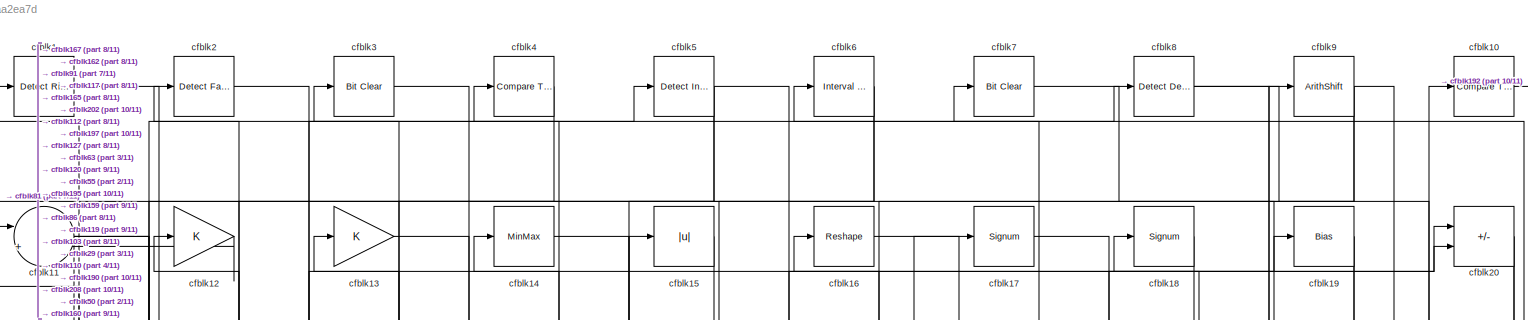
[diagram: root canvas - part 1/11, full width, top band]
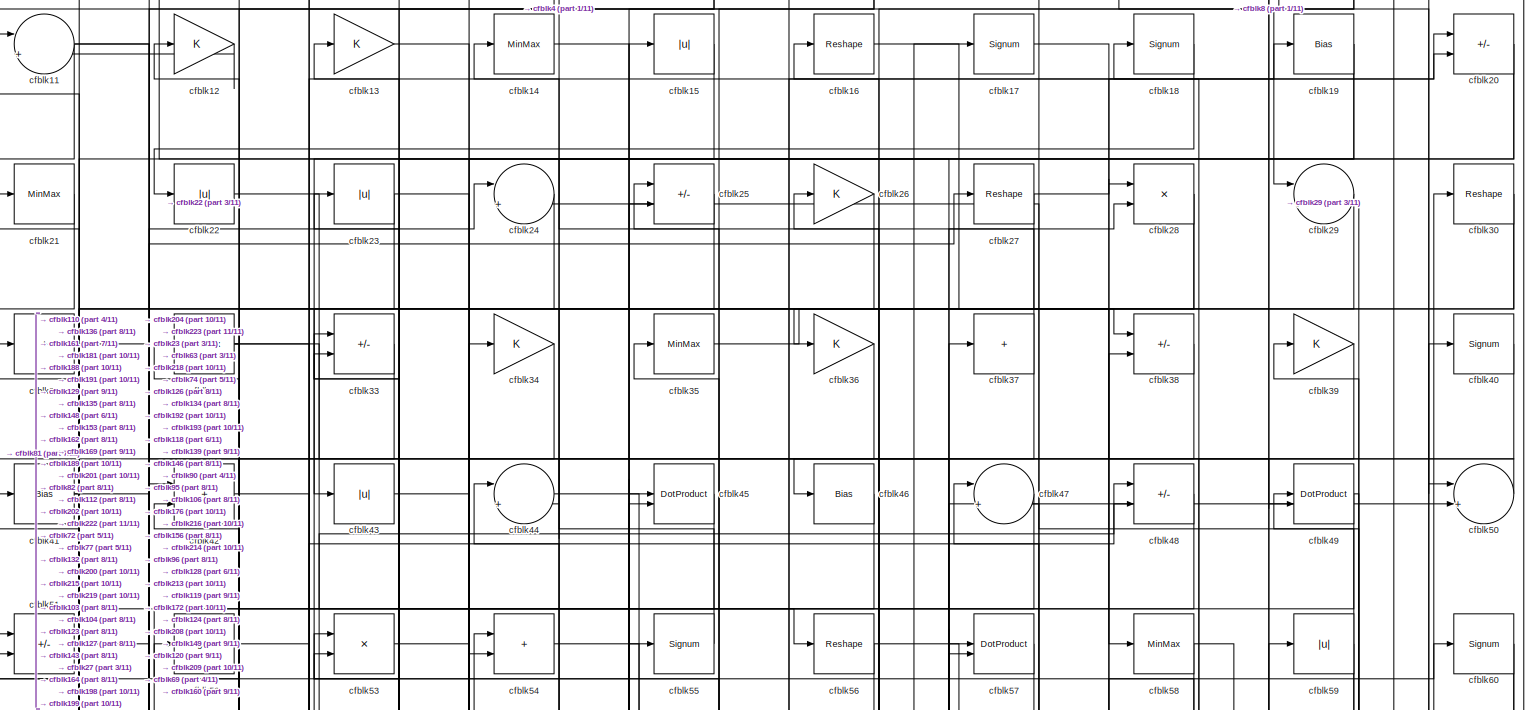
[diagram: root canvas - part 2/11, full width, top band]
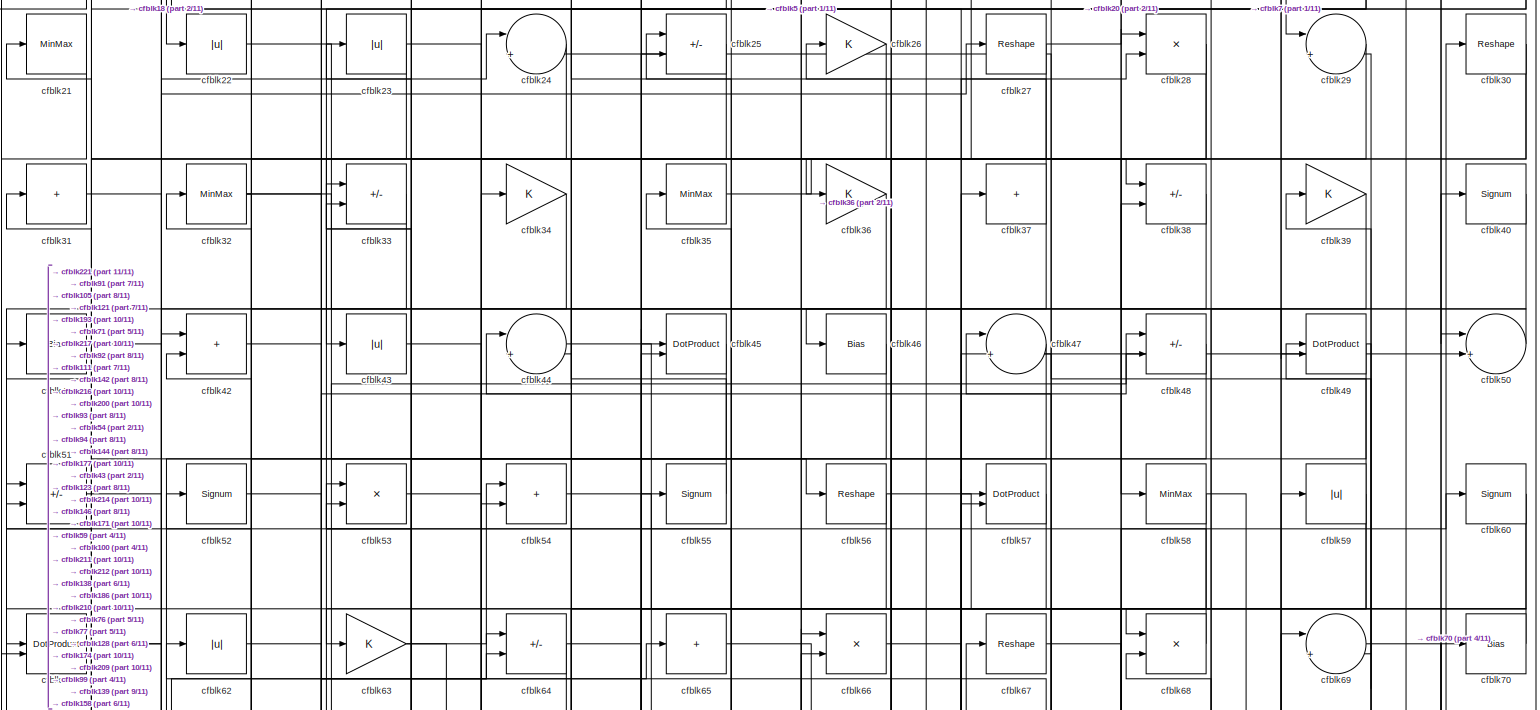
[diagram: root canvas - part 3/11, full width, top band]
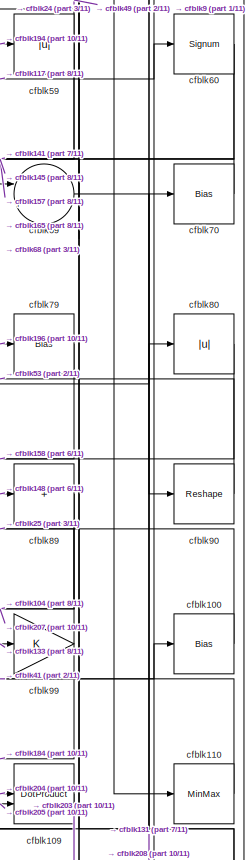
[diagram: root canvas - part 4/11, middle right region]
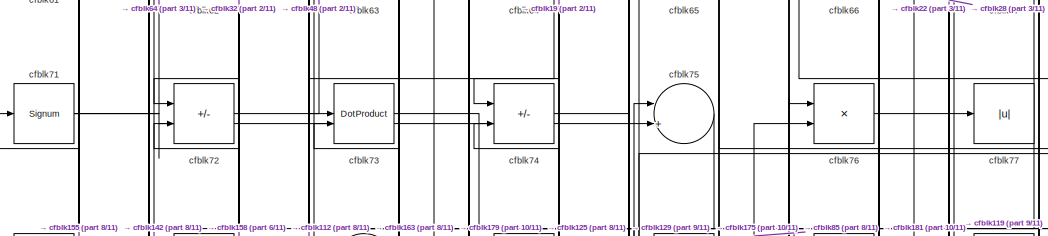
[diagram: root canvas - part 5/11, top center region]
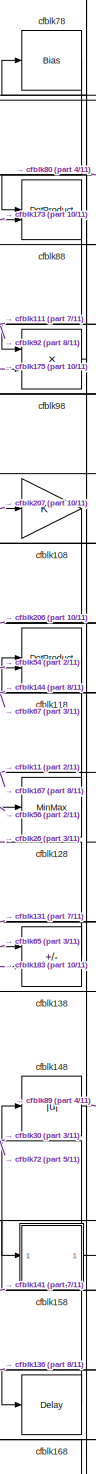
[diagram: root canvas - part 6/11, middle right region]
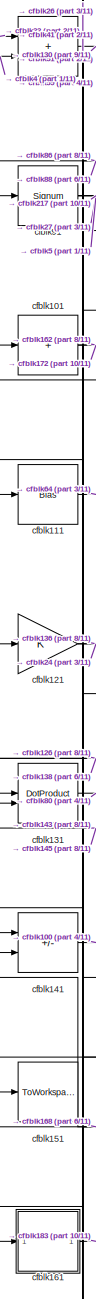
[diagram: root canvas - part 7/11, middle left region]
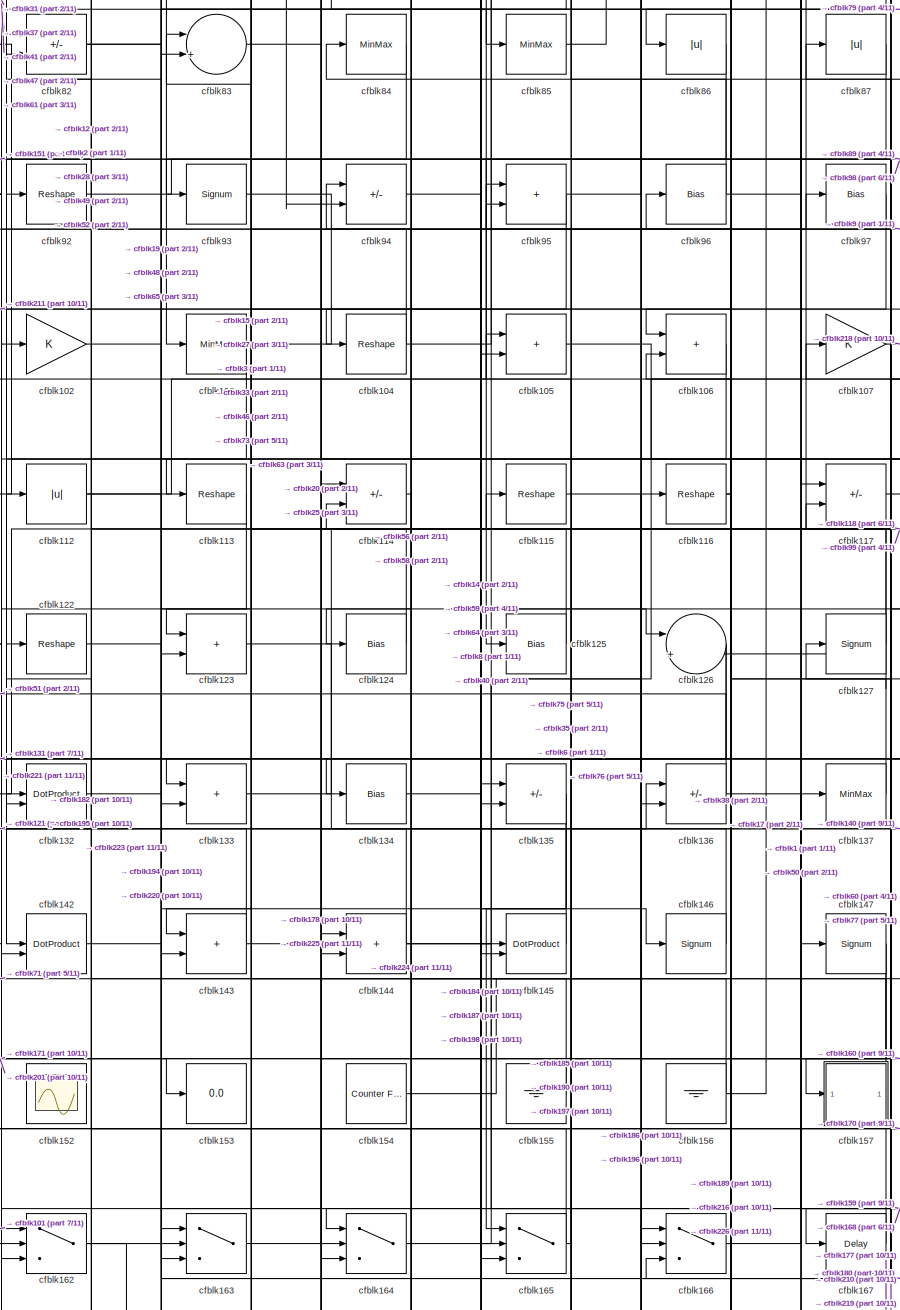
[diagram: root canvas - part 8/11, central region]
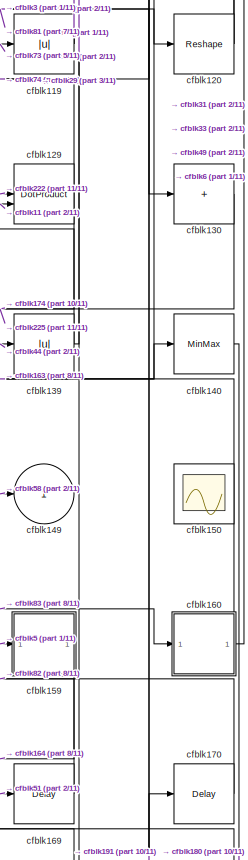
[diagram: root canvas - part 9/11, middle right region]
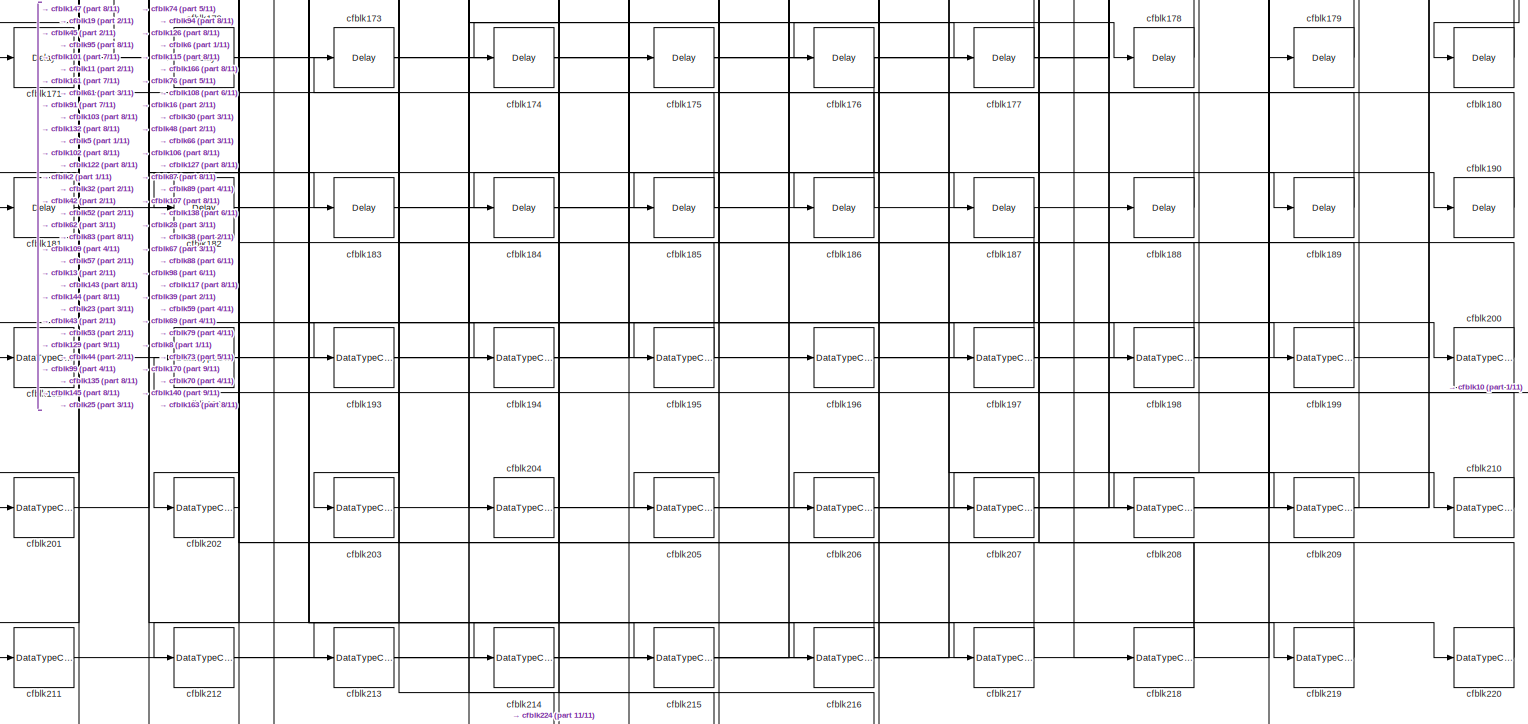
[diagram: root canvas - part 10/11, full width, bottom band]
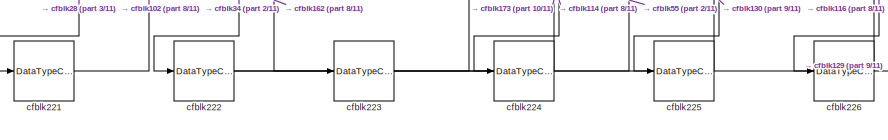
[diagram: root canvas - part 11/11, bottom left region]
MODEL slx_a9c3eaa2ea7d
KIND model
CONFIG AbsTol = auto
CONFIG EnableMultiTasking = off
CONFIG FixedStep = auto
CONFIG MaxStep = auto
CONFIG MinStep = auto
CONFIG RelTol = 1e-3
CONFIG SampleTimeConstraint = Unconstrained
CONFIG SolverName = VariableStepAuto
CONFIG StartTime = 0.0
CONFIG StopTime = 10.0
BLOCK [Reference] cfblk1  REF=hdlsllib/Logic and Bit
Operations/Detect Rise
Positive
  SourceBlock = hdlsllib/Logic and Bit\nOperations/Detect Rise\nPositive
  SourceType = Detect Rise Positive
BLOCK [Reference] cfblk10  REF=hdlsllib/Logic and Bit
Operations/Compare
To Constant
  SourceBlock = hdlsllib/Logic and Bit\nOperations/Compare\nTo Constant
  SourceType = Compare To Constant
BLOCK [Bias] cfblk100
  Bias = 0.0
  SaturateOnIntegerOverflow = off
BLOCK [Sum] cfblk101
  IconShape = rectangular
  Inputs = +
BLOCK [Gain] cfblk102
BLOCK [MinMax] cfblk103
BLOCK [Reshape] cfblk104
BLOCK [Sum] cfblk105
  IconShape = rectangular
BLOCK [Sum] cfblk106
  IconShape = rectangular
BLOCK [Gain] cfblk107
BLOCK [Gain] cfblk108
BLOCK [DotProduct] cfblk109
  OutDataTypeStr = Inherit: Inherit via internal rule
BLOCK [Sum] cfblk11
  Inputs = |++
BLOCK [MinMax] cfblk110
BLOCK [Bias] cfblk111
  Bias = 0.0
  SaturateOnIntegerOverflow = off
BLOCK [Abs] cfblk112
  SaturateOnIntegerOverflow = off
BLOCK [Reshape] cfblk113
BLOCK [Sum] cfblk114
  IconShape = rectangular
  Inputs = +-
BLOCK [Reshape] cfblk115
BLOCK [Reshape] cfblk116
BLOCK [Sum] cfblk117
  IconShape = rectangular
  Inputs = +-
BLOCK [DotProduct] cfblk118
  OutDataTypeStr = Inherit: Inherit via internal rule
BLOCK [Abs] cfblk119
  SaturateOnIntegerOverflow = off
BLOCK [Gain] cfblk12
BLOCK [Reshape] cfblk120
BLOCK [Gain] cfblk121
BLOCK [Reshape] cfblk122
BLOCK [Sum] cfblk123
  IconShape = rectangular
BLOCK [Bias] cfblk124
  Bias = 0.0
  SaturateOnIntegerOverflow = off
BLOCK [Bias] cfblk125
  Bias = 0.0
  SaturateOnIntegerOverflow = off
BLOCK [Sum] cfblk126
  Inputs = |++
BLOCK [Signum] cfblk127
BLOCK [MinMax] cfblk128
BLOCK [DotProduct] cfblk129
  OutDataTypeStr = Inherit: Inherit via internal rule
BLOCK [Gain] cfblk13
BLOCK [Sum] cfblk130
  IconShape = rectangular
  Inputs = +
BLOCK [DotProduct] cfblk131
  OutDataTypeStr = Inherit: Inherit via internal rule
BLOCK [DotProduct] cfblk132
  OutDataTypeStr = Inherit: Inherit via internal rule
BLOCK [Sum] cfblk133
  IconShape = rectangular
BLOCK [Bias] cfblk134
  Bias = 0.0
  SaturateOnIntegerOverflow = off
BLOCK [Sum] cfblk135
  IconShape = rectangular
  Inputs = +-
BLOCK [Sum] cfblk136
  IconShape = rectangular
  Inputs = +-
BLOCK [MinMax] cfblk137
BLOCK [Sum] cfblk138
  IconShape = rectangular
  Inputs = +-
BLOCK [Abs] cfblk139
  SaturateOnIntegerOverflow = off
BLOCK [MinMax] cfblk14
BLOCK [MinMax] cfblk140
BLOCK [Sum] cfblk141
  IconShape = rectangular
  Inputs = +-
BLOCK [DotProduct] cfblk142
  OutDataTypeStr = Inherit: Inherit via internal rule
BLOCK [Sum] cfblk143
  IconShape = rectangular
BLOCK [Sum] cfblk144
  IconShape = rectangular
BLOCK [DotProduct] cfblk145
  OutDataTypeStr = Inherit: Inherit via internal rule
BLOCK [Signum] cfblk146
BLOCK [Signum] cfblk147
BLOCK [Abs] cfblk148
  SaturateOnIntegerOverflow = off
BLOCK [Outport] cfblk149
  VectorParamsAs1DForOutWhenUnconnected = off
BLOCK [Abs] cfblk15
  SaturateOnIntegerOverflow = off
BLOCK [Scope] cfblk150
  Floating = on
  NumInputPorts = 1
  ScopeSpecificationString = Simulink.scopes.TimeScopeBlockCfg('CurrentConfiguration', extmgr.ConfigurationSet(extmgr.Configuration('Core','General UI',true,'FigureColor',[0.156862745098039 0.156862745098039 0.156862745098039]),extmgr.Configuration('Core','Source UI',true),extmgr.Configuration('Sources','WiredSimulink',true,'DataLoggingVariableName','ScopeData1','DataLoggingSaveFormat','StructureWithTime','DataLoggingLimitDat...<+2713ch>
BLOCK [ToWorkspace] cfblk151
  MaxDataPoints = inf
  SampleTime = -1
  SaveFormat = Timeseries
  VariableName = simout
BLOCK [Scope] cfblk152
  Floating = on
  NumInputPorts = 1
  ScopeSpecificationString = Simulink.scopes.TimeScopeBlockCfg('CurrentConfiguration', extmgr.ConfigurationSet(extmgr.Configuration('Core','General UI',true,'FigureColor',[0.156862745098039 0.156862745098039 0.156862745098039]),extmgr.Configuration('Core','Source UI',true),extmgr.Configuration('Sources','WiredSimulink',true,'DataLoggingVariableName','ScopeData1','DataLoggingSaveFormat','StructureWithTime','DataLoggingLimitDat...<+2713ch>
BLOCK [Display] cfblk153
  Decimation = 1
BLOCK [Reference] cfblk154  REF=hdlsllib/Sources/Counter
Free-Running
  SourceBlock = hdlsllib/Sources/Counter\nFree-Running
  SourceType = Counter Free-Running
BLOCK [Ground] cfblk155
BLOCK [Ground] cfblk156
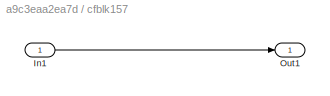
BLOCK [SubSystem] cfblk157
  LibrarySourceBlock = hdlsllib/Ports &\nSubsystems/Subsystem
BLOCK [Inport] cfblk157/In1
BLOCK [Outport] cfblk157/Out1
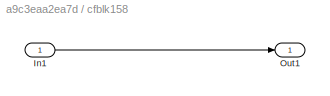
BLOCK [SubSystem] cfblk158
  LibrarySourceBlock = hdlsllib/Ports &\nSubsystems/Subsystem
BLOCK [Inport] cfblk158/In1
BLOCK [Outport] cfblk158/Out1
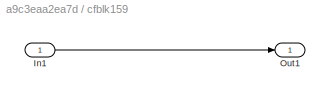
BLOCK [SubSystem] cfblk159
  LibrarySourceBlock = hdlsllib/Ports &\nSubsystems/Subsystem
BLOCK [Inport] cfblk159/In1
BLOCK [Outport] cfblk159/Out1
BLOCK [Reshape] cfblk16
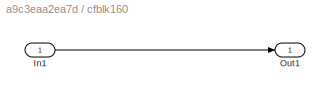
BLOCK [SubSystem] cfblk160
  LibrarySourceBlock = hdlsllib/Ports &\nSubsystems/Subsystem
BLOCK [Inport] cfblk160/In1
BLOCK [Outport] cfblk160/Out1
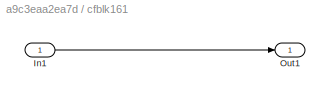
BLOCK [SubSystem] cfblk161
  LibrarySourceBlock = hdlsllib/Ports &\nSubsystems/Subsystem
BLOCK [Inport] cfblk161/In1
BLOCK [Outport] cfblk161/Out1
BLOCK [Switch] cfblk162
  InputSameDT = off
  SaturateOnIntegerOverflow = off
BLOCK [Switch] cfblk163
  InputSameDT = off
  SaturateOnIntegerOverflow = off
BLOCK [Switch] cfblk164
  InputSameDT = off
  SaturateOnIntegerOverflow = off
BLOCK [Switch] cfblk165
  InputSameDT = off
  SaturateOnIntegerOverflow = off
BLOCK [Switch] cfblk166
  InputSameDT = off
  SaturateOnIntegerOverflow = off
BLOCK [Delay] cfblk167
  InputPortMap = u0
  SampleTime = 1
BLOCK [Delay] cfblk168
  InputPortMap = u0
  SampleTime = 1
BLOCK [Delay] cfblk169
  InputPortMap = u0
  SampleTime = 1
BLOCK [Signum] cfblk17
BLOCK [Delay] cfblk170
  InputPortMap = u0
  SampleTime = 1
BLOCK [Delay] cfblk171
  InputPortMap = u0
  SampleTime = 1
BLOCK [Delay] cfblk172
  InputPortMap = u0
  SampleTime = 1
BLOCK [Delay] cfblk173
  InputPortMap = u0
  SampleTime = 1
BLOCK [Delay] cfblk174
  InputPortMap = u0
  SampleTime = 1
BLOCK [Delay] cfblk175
  InputPortMap = u0
  SampleTime = 1
BLOCK [Delay] cfblk176
  InputPortMap = u0
  SampleTime = 1
BLOCK [Delay] cfblk177
  InputPortMap = u0
  SampleTime = 1
BLOCK [Delay] cfblk178
  InputPortMap = u0
  SampleTime = 1
BLOCK [Delay] cfblk179
  InputPortMap = u0
  SampleTime = 1
BLOCK [Signum] cfblk18
BLOCK [Delay] cfblk180
  InputPortMap = u0
  SampleTime = 1
BLOCK [Delay] cfblk181
  InputPortMap = u0
  SampleTime = 1
BLOCK [Delay] cfblk182
  InputPortMap = u0
  SampleTime = 1
BLOCK [Delay] cfblk183
  InputPortMap = u0
  SampleTime = 1
BLOCK [Delay] cfblk184
  InputPortMap = u0
  SampleTime = 1
BLOCK [Delay] cfblk185
  InputPortMap = u0
  SampleTime = 1
BLOCK [Delay] cfblk186
  InputPortMap = u0
  SampleTime = 1
BLOCK [Delay] cfblk187
  InputPortMap = u0
  SampleTime = 1
BLOCK [Delay] cfblk188
  InputPortMap = u0
  SampleTime = 1
BLOCK [Delay] cfblk189
  InputPortMap = u0
  SampleTime = 1
BLOCK [Bias] cfblk19
  Bias = 0.0
  SaturateOnIntegerOverflow = off
BLOCK [Delay] cfblk190
  InputPortMap = u0
  SampleTime = 1
BLOCK [DataTypeConversion] cfblk191
  OutDataTypeStr = uint8
  RndMeth = Floor
  SaturateOnIntegerOverflow = off
BLOCK [DataTypeConversion] cfblk192
  OutDataTypeStr = uint8
  RndMeth = Floor
  SaturateOnIntegerOverflow = off
BLOCK [DataTypeConversion] cfblk193
  OutDataTypeStr = uint8
  RndMeth = Floor
  SaturateOnIntegerOverflow = off
BLOCK [DataTypeConversion] cfblk194
  OutDataTypeStr = uint8
  RndMeth = Floor
  SaturateOnIntegerOverflow = off
BLOCK [DataTypeConversion] cfblk195
  OutDataTypeStr = uint8
  RndMeth = Floor
  SaturateOnIntegerOverflow = off
BLOCK [DataTypeConversion] cfblk196
  OutDataTypeStr = uint8
  RndMeth = Floor
  SaturateOnIntegerOverflow = off
BLOCK [DataTypeConversion] cfblk197
  OutDataTypeStr = uint8
  RndMeth = Floor
  SaturateOnIntegerOverflow = off
BLOCK [DataTypeConversion] cfblk198
  OutDataTypeStr = uint8
  RndMeth = Floor
  SaturateOnIntegerOverflow = off
BLOCK [DataTypeConversion] cfblk199
  OutDataTypeStr = uint8
  RndMeth = Floor
  SaturateOnIntegerOverflow = off
BLOCK [Reference] cfblk2  REF=hdlsllib/Logic and Bit
Operations/Detect Fall
Nonpositive
  SourceBlock = hdlsllib/Logic and Bit\nOperations/Detect Fall\nNonpositive
  SourceType = Detect Fall Nonpositive
BLOCK [Sum] cfblk20
  IconShape = rectangular
  Inputs = +-
BLOCK [DataTypeConversion] cfblk200
  OutDataTypeStr = uint8
  RndMeth = Floor
  SaturateOnIntegerOverflow = off
BLOCK [DataTypeConversion] cfblk201
  OutDataTypeStr = uint8
  RndMeth = Floor
  SaturateOnIntegerOverflow = off
BLOCK [DataTypeConversion] cfblk202
  OutDataTypeStr = uint8
  RndMeth = Floor
  SaturateOnIntegerOverflow = off
BLOCK [DataTypeConversion] cfblk203
  OutDataTypeStr = uint8
  RndMeth = Floor
  SaturateOnIntegerOverflow = off
BLOCK [DataTypeConversion] cfblk204
  OutDataTypeStr = uint8
  RndMeth = Floor
  SaturateOnIntegerOverflow = off
BLOCK [DataTypeConversion] cfblk205
  OutDataTypeStr = uint8
  RndMeth = Floor
  SaturateOnIntegerOverflow = off
BLOCK [DataTypeConversion] cfblk206
  OutDataTypeStr = uint8
  RndMeth = Floor
  SaturateOnIntegerOverflow = off
BLOCK [DataTypeConversion] cfblk207
  OutDataTypeStr = uint8
  RndMeth = Floor
  SaturateOnIntegerOverflow = off
BLOCK [DataTypeConversion] cfblk208
  RndMeth = Floor
  SaturateOnIntegerOverflow = off
BLOCK [DataTypeConversion] cfblk209
  OutDataTypeStr = uint8
  RndMeth = Floor
  SaturateOnIntegerOverflow = off
BLOCK [MinMax] cfblk21
BLOCK [DataTypeConversion] cfblk210
  OutDataTypeStr = uint8
  RndMeth = Floor
  SaturateOnIntegerOverflow = off
BLOCK [DataTypeConversion] cfblk211
  OutDataTypeStr = uint8
  RndMeth = Floor
  SaturateOnIntegerOverflow = off
BLOCK [DataTypeConversion] cfblk212
  OutDataTypeStr = uint8
  RndMeth = Floor
  SaturateOnIntegerOverflow = off
BLOCK [DataTypeConversion] cfblk213
  OutDataTypeStr = uint8
  RndMeth = Floor
  SaturateOnIntegerOverflow = off
BLOCK [DataTypeConversion] cfblk214
  OutDataTypeStr = uint8
  RndMeth = Floor
  SaturateOnIntegerOverflow = off
BLOCK [DataTypeConversion] cfblk215
  OutDataTypeStr = uint8
  RndMeth = Floor
  SaturateOnIntegerOverflow = off
BLOCK [DataTypeConversion] cfblk216
  RndMeth = Floor
  SaturateOnIntegerOverflow = off
BLOCK [DataTypeConversion] cfblk217
  OutDataTypeStr = uint8
  RndMeth = Floor
  SaturateOnIntegerOverflow = off
BLOCK [DataTypeConversion] cfblk218
  RndMeth = Floor
  SaturateOnIntegerOverflow = off
BLOCK [DataTypeConversion] cfblk219
  OutDataTypeStr = uint8
  RndMeth = Floor
  SaturateOnIntegerOverflow = off
BLOCK [Abs] cfblk22
  SaturateOnIntegerOverflow = off
BLOCK [DataTypeConversion] cfblk220
  OutDataTypeStr = uint8
  RndMeth = Floor
  SaturateOnIntegerOverflow = off
BLOCK [DataTypeConversion] cfblk221
  OutDataTypeStr = uint8
  RndMeth = Floor
  SaturateOnIntegerOverflow = off
BLOCK [DataTypeConversion] cfblk222
  RndMeth = Floor
  SaturateOnIntegerOverflow = off
BLOCK [DataTypeConversion] cfblk223
  OutDataTypeStr = uint8
  RndMeth = Floor
  SaturateOnIntegerOverflow = off
BLOCK [DataTypeConversion] cfblk224
  OutDataTypeStr = uint8
  RndMeth = Floor
  SaturateOnIntegerOverflow = off
BLOCK [DataTypeConversion] cfblk225
  OutDataTypeStr = uint8
  RndMeth = Floor
  SaturateOnIntegerOverflow = off
BLOCK [DataTypeConversion] cfblk226
  OutDataTypeStr = uint8
  RndMeth = Floor
  SaturateOnIntegerOverflow = off
BLOCK [Abs] cfblk23
  SaturateOnIntegerOverflow = off
BLOCK [Sum] cfblk24
  Inputs = |++
BLOCK [Sum] cfblk25
  IconShape = rectangular
  Inputs = +-
BLOCK [Gain] cfblk26
BLOCK [Reshape] cfblk27
BLOCK [Product] cfblk28
  Inputs = */
  RndMeth = Zero
  SaturateOnIntegerOverflow = on
BLOCK [Sum] cfblk29
  Inputs = |++
BLOCK [Reference] cfblk3  REF=simulink/Logic and Bit
Operations/Bit Clear
  LibrarySourceBlock = hdlsllib/Logic and Bit\nOperations/Bit Clear
  SourceBlock = simulink/Logic and Bit\nOperations/Bit Clear
  SourceType = Bit Clear
BLOCK [Reshape] cfblk30
BLOCK [Sum] cfblk31
  IconShape = rectangular
  Inputs = +
BLOCK [MinMax] cfblk32
BLOCK [Sum] cfblk33
  IconShape = rectangular
  Inputs = +-
BLOCK [Gain] cfblk34
BLOCK [MinMax] cfblk35
BLOCK [Gain] cfblk36
BLOCK [Sum] cfblk37
  IconShape = rectangular
  Inputs = +
BLOCK [Sum] cfblk38
  IconShape = rectangular
  Inputs = +-
BLOCK [Gain] cfblk39
BLOCK [Reference] cfblk4  REF=hdlsllib/Logic and Bit
Operations/Compare
To Zero
  SourceBlock = hdlsllib/Logic and Bit\nOperations/Compare\nTo Zero
  SourceType = Compare To Zero
BLOCK [Signum] cfblk40
BLOCK [Bias] cfblk41
  Bias = 0.0
  SaturateOnIntegerOverflow = off
BLOCK [Sum] cfblk42
  IconShape = rectangular
BLOCK [Abs] cfblk43
  SaturateOnIntegerOverflow = off
BLOCK [Sum] cfblk44
  Inputs = |++
BLOCK [DotProduct] cfblk45
  OutDataTypeStr = Inherit: Inherit via internal rule
BLOCK [Bias] cfblk46
  Bias = 0.0
  SaturateOnIntegerOverflow = off
BLOCK [Sum] cfblk47
  Inputs = |++
BLOCK [Sum] cfblk48
  IconShape = rectangular
  Inputs = +-
BLOCK [DotProduct] cfblk49
  OutDataTypeStr = Inherit: Inherit via internal rule
BLOCK [Reference] cfblk5  REF=simulink/Logic and Bit
Operations/Detect
Increase
  LibrarySourceBlock = hdlsllib/Logic and Bit\nOperations/Detect\nIncrease
  SourceBlock = simulink/Logic and Bit\nOperations/Detect\nIncrease
  SourceType = Detect Increase
BLOCK [Sum] cfblk50
  Inputs = |++
BLOCK [Sum] cfblk51
  IconShape = rectangular
  Inputs = +-
BLOCK [Signum] cfblk52
BLOCK [Product] cfblk53
  Inputs = */
  RndMeth = Zero
  SaturateOnIntegerOverflow = on
BLOCK [Sum] cfblk54
  IconShape = rectangular
BLOCK [Signum] cfblk55
BLOCK [Reshape] cfblk56
BLOCK [DotProduct] cfblk57
  OutDataTypeStr = Inherit: Inherit via internal rule
BLOCK [MinMax] cfblk58
BLOCK [Abs] cfblk59
  SaturateOnIntegerOverflow = off
BLOCK [Reference] cfblk6  REF=hdlsllib/Logic and Bit
Operations/Interval Test
  SourceBlock = hdlsllib/Logic and Bit\nOperations/Interval Test
  SourceType = Interval Test
BLOCK [Signum] cfblk60
BLOCK [DotProduct] cfblk61
  OutDataTypeStr = Inherit: Inherit via internal rule
BLOCK [Abs] cfblk62
  SaturateOnIntegerOverflow = off
BLOCK [Gain] cfblk63
BLOCK [Sum] cfblk64
  IconShape = rectangular
  Inputs = +-
BLOCK [Sum] cfblk65
  IconShape = rectangular
  Inputs = +
BLOCK [Product] cfblk66
  Inputs = */
  RndMeth = Zero
  SaturateOnIntegerOverflow = on
BLOCK [Reshape] cfblk67
BLOCK [Product] cfblk68
  Inputs = */
  RndMeth = Zero
  SaturateOnIntegerOverflow = on
BLOCK [Sum] cfblk69
  Inputs = |++
BLOCK [Reference] cfblk7  REF=simulink/Logic and Bit
Operations/Bit Clear
  LibrarySourceBlock = hdlsllib/Logic and Bit\nOperations/Bit Clear
  SourceBlock = simulink/Logic and Bit\nOperations/Bit Clear
  SourceType = Bit Clear
BLOCK [Bias] cfblk70
  Bias = 0.0
  SaturateOnIntegerOverflow = off
BLOCK [Signum] cfblk71
BLOCK [Sum] cfblk72
  IconShape = rectangular
  Inputs = +-
BLOCK [DotProduct] cfblk73
  OutDataTypeStr = Inherit: Inherit via internal rule
BLOCK [Sum] cfblk74
  IconShape = rectangular
  Inputs = +-
BLOCK [Sum] cfblk75
  Inputs = |++
BLOCK [Product] cfblk76
  Inputs = */
  RndMeth = Zero
  SaturateOnIntegerOverflow = on
BLOCK [Abs] cfblk77
  SaturateOnIntegerOverflow = off
BLOCK [Bias] cfblk78
  Bias = 0.0
  SaturateOnIntegerOverflow = off
BLOCK [Bias] cfblk79
  Bias = 0.0
  SaturateOnIntegerOverflow = off
BLOCK [Reference] cfblk8  REF=simulink/Logic and Bit
Operations/Detect
Decrease
  LibrarySourceBlock = hdlsllib/Logic and Bit\nOperations/Detect\nDecrease
  SourceBlock = simulink/Logic and Bit\nOperations/Detect\nDecrease
  SourceType = Detect Decrease
BLOCK [Abs] cfblk80
  SaturateOnIntegerOverflow = off
BLOCK [Sum] cfblk81
  IconShape = rectangular
BLOCK [Sum] cfblk82
  IconShape = rectangular
  Inputs = +-
BLOCK [Sum] cfblk83
  Inputs = |++
BLOCK [MinMax] cfblk84
BLOCK [MinMax] cfblk85
BLOCK [Abs] cfblk86
  SaturateOnIntegerOverflow = off
BLOCK [Abs] cfblk87
  SaturateOnIntegerOverflow = off
BLOCK [DotProduct] cfblk88
  OutDataTypeStr = Inherit: Inherit via internal rule
BLOCK [Sum] cfblk89
  IconShape = rectangular
  Inputs = +
BLOCK [ArithShift] cfblk9
  BitShiftNumber = 8
  InputPortMap = u0
BLOCK [Reshape] cfblk90
BLOCK [Signum] cfblk91
BLOCK [Reshape] cfblk92
BLOCK [Signum] cfblk93
BLOCK [Sum] cfblk94
  IconShape = rectangular
  Inputs = +-
BLOCK [Sum] cfblk95
  IconShape = rectangular
BLOCK [Bias] cfblk96
  Bias = 0.0
  SaturateOnIntegerOverflow = off
BLOCK [Bias] cfblk97
  Bias = 0.0
  SaturateOnIntegerOverflow = off
BLOCK [Product] cfblk98
  Inputs = */
  RndMeth = Zero
  SaturateOnIntegerOverflow = on
BLOCK [Gain] cfblk99
LINE cfblk100:1 -> cfblk25:1
NET cfblk101:1 -> cfblk162:1, cfblk172:1
LINE cfblk102:1 -> cfblk220:1
NET cfblk103:1 -> cfblk182:1, cfblk9:1
NET cfblk104:1 -> cfblk33:2, cfblk40:1
LINE cfblk105:1 -> cfblk147:1
LINE cfblk106:1 -> cfblk142:2
LINE cfblk107:1 -> cfblk218:1
LINE cfblk108:1 -> cfblk206:1
LINE cfblk109:1 -> cfblk203:1
LINE cfblk10:1 -> cfblk192:1
LINE cfblk110:1 -> cfblk41:1
LINE cfblk111:1 -> cfblk64:2
NET cfblk112:1 -> cfblk75:1, cfblk8:1
LINE cfblk113:1 -> cfblk143:2
LINE cfblk114:1 -> cfblk224:1
LINE cfblk115:1 -> cfblk196:1
NET cfblk116:1 -> cfblk226:1, cfblk96:1
LINE cfblk117:1 -> cfblk60:1
LINE cfblk118:1 -> cfblk167:1
NET cfblk119:1 -> cfblk47:2, cfblk7:1
NET cfblk11:1 -> cfblk129:2, cfblk148:1, cfblk189:1
NET cfblk120:1 -> cfblk31:1, cfblk49:1
NET cfblk121:1 -> cfblk136:2, cfblk24:1
LINE cfblk122:1 -> cfblk194:1
LINE cfblk123:1 -> cfblk136:1
LINE cfblk124:1 -> cfblk52:1
LINE cfblk125:1 -> cfblk73:2
NET cfblk126:1 -> cfblk131:2, cfblk185:1
NET cfblk127:1 -> cfblk126:2, cfblk12:1, cfblk3:1
LINE cfblk128:1 -> cfblk67:1
NET cfblk129:1 -> cfblk174:1, cfblk74:2
LINE cfblk12:1 -> cfblk11:2
LINE cfblk130:1 -> cfblk225:1
LINE cfblk131:1 -> cfblk80:1
LINE cfblk132:1 -> cfblk19:1
LINE cfblk133:1 -> cfblk99:1
LINE cfblk134:1 -> cfblk15:1
NET cfblk135:1 -> cfblk163:2, cfblk165:1
NET cfblk136:1 -> cfblk168:1, cfblk51:1
LINE cfblk137:1 -> cfblk95:1
NET cfblk138:1 -> cfblk131:1, cfblk26:1
NET cfblk139:1 -> cfblk18:1, cfblk29:2
LINE cfblk13:1 -> cfblk198:1
LINE cfblk140:1 -> cfblk180:1
LINE cfblk141:1 -> cfblk100:1
LINE cfblk142:1 -> cfblk65:1
NET cfblk143:1 -> cfblk121:1, cfblk178:1
NET cfblk144:1 -> cfblk118:1, cfblk132:1, cfblk166:2
LINE cfblk145:1 -> cfblk101:1
LINE cfblk146:1 -> cfblk35:1
NET cfblk147:1 -> cfblk171:1, cfblk201:1
LINE cfblk148:1 -> cfblk89:1
LINE cfblk14:1 -> cfblk126:1
LINE cfblk154:1 -> cfblk116:1
LINE cfblk155:1 -> cfblk71:1
NET cfblk156:1 -> cfblk17:1, cfblk94:1
LINE cfblk157/In1:1 -> cfblk157/Out1:1
LINE cfblk157:1 -> cfblk83:1
LINE cfblk158/In1:1 -> cfblk158/Out1:1
NET cfblk158:1 -> cfblk30:1, cfblk72:2
LINE cfblk159/In1:1 -> cfblk159/Out1:1
LINE cfblk159:1 -> cfblk164:1
LINE cfblk15:1 -> cfblk143:1
LINE cfblk160/In1:1 -> cfblk160/Out1:1
NET cfblk160:1 -> cfblk33:1, cfblk6:1
LINE cfblk161/In1:1 -> cfblk161/Out1:1
NET cfblk161:1 -> cfblk183:1, cfblk51:2
NET cfblk162:1 -> cfblk223:1, cfblk48:2
LINE cfblk163:1 -> cfblk140:1
LINE cfblk164:1 -> cfblk37:1
NET cfblk165:1 -> cfblk105:1, cfblk2:1
LINE cfblk166:1 -> cfblk137:1
LINE cfblk167:1 -> cfblk1:1
LINE cfblk168:1 -> cfblk141:2
LINE cfblk169:1 -> cfblk47:1
LINE cfblk16:1 -> cfblk58:1
LINE cfblk170:1 -> cfblk82:2
LINE cfblk171:1 -> cfblk25:2
LINE cfblk172:1 -> cfblk38:2
LINE cfblk173:1 -> cfblk88:2
LINE cfblk174:1 -> cfblk28:1
LINE cfblk175:1 -> cfblk98:2
LINE cfblk176:1 -> cfblk205:1
LINE cfblk177:1 -> cfblk106:2
LINE cfblk178:1 -> cfblk117:2
LINE cfblk179:1 -> cfblk73:1
LINE cfblk17:1 -> cfblk49:2
LINE cfblk180:1 -> cfblk163:1
LINE cfblk181:1 -> cfblk76:1
LINE cfblk182:1 -> cfblk83:2
LINE cfblk183:1 -> cfblk138:2
LINE cfblk184:1 -> cfblk135:1
LINE cfblk185:1 -> cfblk144:1
LINE cfblk186:1 -> cfblk166:1
LINE cfblk187:1 -> cfblk212:1
LINE cfblk188:1 -> cfblk11:1
LINE cfblk189:1 -> cfblk166:3
LINE cfblk18:1 -> cfblk22:1
LINE cfblk190:1 -> cfblk95:2
LINE cfblk191:1 -> cfblk170:1
LINE cfblk192:1 -> cfblk45:1
LINE cfblk193:1 -> cfblk45:2
LINE cfblk194:1 -> cfblk59:1
LINE cfblk195:1 -> cfblk122:1
LINE cfblk196:1 -> cfblk79:1
LINE cfblk197:1 -> cfblk115:1
LINE cfblk198:1 -> cfblk145:1
LINE cfblk199:1 -> cfblk13:1
NET cfblk19:1 -> cfblk181:1, cfblk74:1
LINE cfblk1:1 -> cfblk117:1
LINE cfblk200:1 -> cfblk23:1
LINE cfblk201:1 -> cfblk42:1
LINE cfblk202:1 -> cfblk42:2
LINE cfblk203:1 -> cfblk70:1
LINE cfblk204:1 -> cfblk109:1
LINE cfblk205:1 -> cfblk109:2
LINE cfblk206:1 -> cfblk188:1
LINE cfblk207:1 -> cfblk108:1
NET cfblk208:1 -> cfblk10:1, cfblk69:1
LINE cfblk209:1 -> cfblk39:1
NET cfblk20:1 -> cfblk103:1, cfblk164:3
LINE cfblk210:1 -> cfblk87:1
LINE cfblk211:1 -> cfblk66:1
LINE cfblk212:1 -> cfblk66:2
LINE cfblk213:1 -> cfblk179:1
LINE cfblk214:1 -> cfblk57:1
LINE cfblk215:1 -> cfblk57:2
NET cfblk216:1 -> cfblk132:2, cfblk16:1
LINE cfblk217:1 -> cfblk62:1
NET cfblk218:1 -> cfblk44:1, cfblk53:2
LINE cfblk219:1 -> cfblk107:1
LINE cfblk21:1 -> cfblk61:2
LINE cfblk220:1 -> cfblk127:1
LINE cfblk221:1 -> cfblk102:1
NET cfblk222:1 -> cfblk129:1, cfblk55:1
LINE cfblk223:1 -> cfblk34:1
LINE cfblk224:1 -> cfblk173:1
LINE cfblk225:1 -> cfblk114:1
LINE cfblk226:1 -> cfblk114:2
LINE cfblk22:1 -> cfblk77:1
NET cfblk23:1 -> cfblk177:1, cfblk43:1
LINE cfblk24:1 -> cfblk61:1
LINE cfblk25:1 -> cfblk144:2
LINE cfblk26:1 -> cfblk91:1
NET cfblk27:1 -> cfblk20:1, cfblk93:1
NET cfblk28:1 -> cfblk221:1, cfblk92:1
LINE cfblk29:1 -> cfblk36:1
LINE cfblk2:1 -> cfblk197:1
NET cfblk30:1 -> cfblk186:1, cfblk214:1
LINE cfblk31:1 -> cfblk153:1
NET cfblk32:1 -> cfblk215:1, cfblk56:1, cfblk72:1
LINE cfblk33:1 -> cfblk81:1
LINE cfblk34:1 -> cfblk222:1
LINE cfblk35:1 -> cfblk38:1
LINE cfblk36:1 -> cfblk54:2
NET cfblk37:1 -> cfblk14:1, cfblk162:2
LINE cfblk38:1 -> cfblk106:1
LINE cfblk39:1 -> cfblk208:1
LINE cfblk3:1 -> cfblk120:1
LINE cfblk40:1 -> cfblk44:2
NET cfblk41:1 -> cfblk135:2, cfblk161:1
LINE cfblk42:1 -> cfblk200:1
LINE cfblk43:1 -> cfblk199:1
LINE cfblk44:1 -> cfblk139:1
LINE cfblk45:1 -> cfblk191:1
LINE cfblk46:1 -> cfblk123:1
LINE cfblk47:1 -> cfblk82:1
LINE cfblk48:1 -> cfblk176:1
NET cfblk49:1 -> cfblk112:1, cfblk69:2
LINE cfblk4:1 -> cfblk81:2
LINE cfblk50:1 -> cfblk46:1
LINE cfblk51:1 -> cfblk169:1
LINE cfblk52:1 -> cfblk219:1
LINE cfblk53:1 -> cfblk204:1
LINE cfblk54:1 -> cfblk118:2
LINE cfblk55:1 -> cfblk4:1
NET cfblk56:1 -> cfblk128:1, cfblk134:1
LINE cfblk57:1 -> cfblk213:1
NET cfblk58:1 -> cfblk124:1, cfblk149:1
NET cfblk59:1 -> cfblk141:1, cfblk165:3, cfblk24:2
NET cfblk5:1 -> cfblk159:1, cfblk202:1, cfblk63:1
NET cfblk60:1 -> cfblk145:2, cfblk157:1
NET cfblk61:1 -> cfblk105:2, cfblk193:1
LINE cfblk62:1 -> cfblk216:1
NET cfblk63:1 -> cfblk54:1, cfblk94:2
NET cfblk64:1 -> cfblk123:2, cfblk146:1
LINE cfblk65:1 -> cfblk138:1
LINE cfblk66:1 -> cfblk210:1
LINE cfblk67:1 -> cfblk209:1
LINE cfblk68:1 -> cfblk21:1
LINE cfblk69:1 -> cfblk90:1
NET cfblk6:1 -> cfblk165:2, cfblk195:1
LINE cfblk70:1 -> cfblk68:1
NET cfblk71:1 -> cfblk64:1, cfblk75:2
LINE cfblk72:1 -> cfblk48:1
LINE cfblk73:1 -> cfblk119:1
LINE cfblk74:1 -> cfblk175:1
LINE cfblk75:1 -> cfblk142:1
LINE cfblk76:1 -> cfblk28:2
NET cfblk77:1 -> cfblk163:3, cfblk32:1
LINE cfblk78:1 -> cfblk88:1
LINE cfblk79:1 -> cfblk133:2
LINE cfblk7:1 -> cfblk29:1
LINE cfblk80:1 -> cfblk158:1
LINE cfblk81:1 -> cfblk130:1
NET cfblk82:1 -> cfblk164:2, cfblk85:1
LINE cfblk83:1 -> cfblk160:1
LINE cfblk84:1 -> cfblk133:1
LINE cfblk85:1 -> cfblk76:2
LINE cfblk86:1 -> cfblk151:1
LINE cfblk87:1 -> cfblk125:1
LINE cfblk88:1 -> cfblk111:1
NET cfblk89:1 -> cfblk104:1, cfblk207:1
NET cfblk8:1 -> cfblk190:1, cfblk50:1
LINE cfblk90:1 -> cfblk53:1
NET cfblk91:1 -> cfblk217:1, cfblk27:1, cfblk5:1
LINE cfblk92:1 -> cfblk98:1
LINE cfblk93:1 -> cfblk97:1
LINE cfblk94:1 -> cfblk187:1
NET cfblk95:1 -> cfblk20:2, cfblk211:1
NET cfblk96:1 -> cfblk50:2, cfblk84:1
LINE cfblk97:1 -> cfblk113:1
LINE cfblk98:1 -> cfblk78:1
NET cfblk99:1 -> cfblk184:1, cfblk68:2
NET cfblk9:1 -> cfblk110:1, cfblk162:3, cfblk86:1
note: NET lines group one-source signal fan-out (src -> all destinations, sorted); 1:1 wires keep LINE
